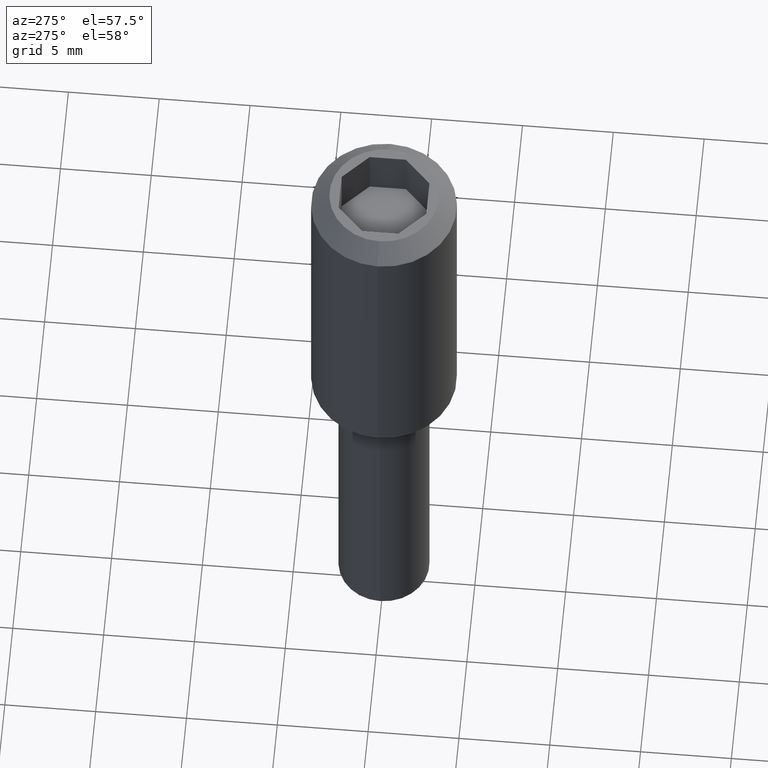
[diagram: clean part render]
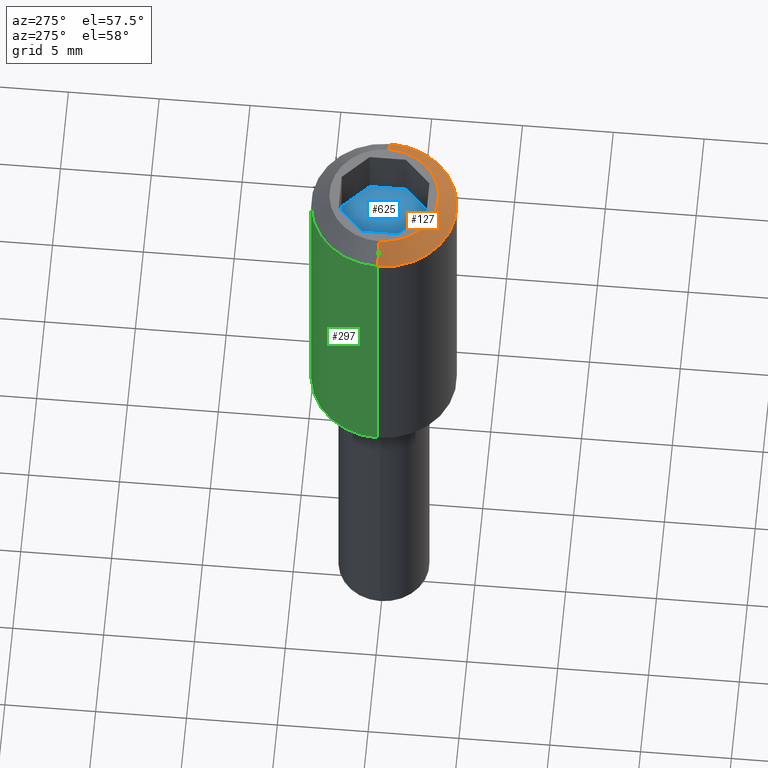
[diagram: same view with three faces highlighted in distinct colors, each labeled with its STEP entity id]
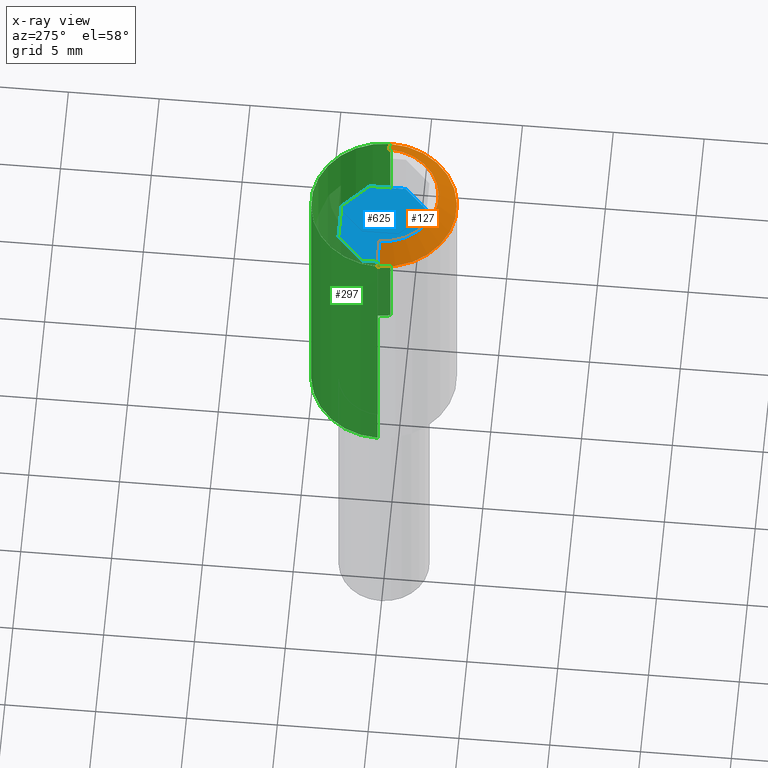
[diagram: x-ray of the same camera — body ghosted, the three highlighted faces saturated]
A machine part, auxiliary view with three faces highlighted in distinct colors.
The next image is the same camera in x-ray (body ghosted, the three faces saturated) — at least one of them is partly hidden behind the body in this view.
Their STEP definitions:

[orange] entity #127 — the highlighted face is a freeform B-spline surface patch.
#65=CARTESIAN_POINT('',(0.0,2.632991E-015,21.500000000000014));
#66=CARTESIAN_POINT('',(0.0,2.632991E-015,21.500000000000014));
#67=CARTESIAN_POINT('',(0.0,2.632991E-015,21.500000000000014));
#68=CARTESIAN_POINT('',(0.0,2.632991E-015,21.500000000000014));
#69=CARTESIAN_POINT('',(0.0,2.632991E-015,21.500000000000014));
#70=CARTESIAN_POINT('',(0.0,2.632991E-015,21.500000000000014));
#71=CARTESIAN_POINT('',(0.0,2.632991E-015,21.500000000000014));
#72=CARTESIAN_POINT('',(0.0,2.632991E-015,21.500000000000014));
#73=CARTESIAN_POINT('',(0.0,2.632991E-015,21.500000000000014));
#74=CARTESIAN_POINT('',(0.0,4.200000000000019,17.299999999999983));
#75=CARTESIAN_POINT('',(4.200000000000017,4.200000000000019,17.299999999999983));
#76=CARTESIAN_POINT('',(4.200000000000017,2.118639E-015,17.299999999999983));
#77=CARTESIAN_POINT('',(4.200000000000017,-4.200000000000015,17.299999999999983));
#78=CARTESIAN_POINT('',(0.0,-4.200000000000015,17.299999999999983));
#79=CARTESIAN_POINT('',(-4.200000000000024,-4.200000000000015,17.299999999999983));
#80=CARTESIAN_POINT('',(-4.200000000000017,2.118639E-015,17.299999999999983));
#81=CARTESIAN_POINT('',(-4.200000000000024,4.200000000000019,17.299999999999983));
#82=CARTESIAN_POINT('',(0.0,4.200000000000019,17.299999999999983));
#90=(BOUNDED_SURFACE()B_SPLINE_SURFACE(2,1,((#65,#74),(#66,#75),(#67,#76),(#68,#77),(#69,#78),(#70,#79),(#71,#80),(#72,#81),(#73,#82)),.UNSPECIFIED.,.T.,.F.,.U.)B_SPLINE_SURFACE_WITH_KNOTS((3,2,2,2,3),(2,2),(0.0,0.250000000000000,0.500000000000000,0.750000000000000,1.0),(0.0,1.0),.UNSPECIFIED.)GEOMETRIC_REPRESENTATION_ITEM()RATIONAL_B_SPLINE_SURFACE(((1.0,1.0),(0.707106781186548,0.707106781186548),(1.0,1.0),(0.707106781186548,0.707106781186548),(1.0,1.0),(0.707106781186548,0.707106781186548),(1.0,1.0),(0.707106781186548,0.707106781186548),(1.0,1.0)))REPRESENTATION_ITEM('')SURFACE());
#91=CARTESIAN_POINT('',(-3.000000000000007,2.265597E-015,18.500000000000000));
#92=VERTEX_POINT('',#91);
#93=CARTESIAN_POINT('',(3.0,2.265597E-015,18.500000000000000));
#94=VERTEX_POINT('',#93);
#95=CARTESIAN_POINT('',(0.0,2.265597E-015,18.500000000000000));
#96=DIRECTION('',(0.0,1.224647E-016,1.0));
#97=DIRECTION('',(-1.0,0.0,0.0));
#98=AXIS2_PLACEMENT_3D('',#95,#96,#97);
#99=CIRCLE('',#98,3.000000000000002);
#100=EDGE_CURVE('',#92,#94,#99,.T.);
#101=ORIENTED_EDGE('',*,*,#100,.F.);
#102=CARTESIAN_POINT('',(-4.000000000000007,2.143132E-015,17.500000000000000));
#103=VERTEX_POINT('',#102);
#104=CARTESIAN_POINT('',(-3.000000000000007,2.265597E-015,18.500000000000000));
#105=DIRECTION('',(-0.707106781186546,-8.659561E-017,-0.707106781186549));
#106=VECTOR('',#105,1.414213562373098);
#107=LINE('',#104,#106);
#108=EDGE_CURVE('',#92,#103,#107,.T.);
#109=ORIENTED_EDGE('',*,*,#108,.T.);
#110=CARTESIAN_POINT('',(4.000000000000028,2.143132E-015,17.500000000000000));
#111=VERTEX_POINT('',#110);
#112=CARTESIAN_POINT('',(0.0,2.143132E-015,17.500000000000000));
#113=DIRECTION('',(0.0,-1.224647E-016,-1.0));
#114=DIRECTION('',(-1.0,0.0,0.0));
#115=AXIS2_PLACEMENT_3D('',#112,#113,#114);
#116=CIRCLE('',#115,4.000000000000004);
#117=EDGE_CURVE('',#111,#103,#116,.T.);
#118=ORIENTED_EDGE('',*,*,#117,.F.);
#119=CARTESIAN_POINT('',(3.0,2.265597E-015,18.500000000000000));
#120=DIRECTION('',(0.707106781186546,-8.659561E-017,-0.707106781186549));
#121=VECTOR('',#120,1.414213562373118);
#122=LINE('',#119,#121);
#123=EDGE_CURVE('',#94,#111,#122,.T.);
#124=ORIENTED_EDGE('',*,*,#123,.F.);
#125=EDGE_LOOP('',(#101,#109,#118,#124));
#126=FACE_OUTER_BOUND('',#125,.T.);
#127=ADVANCED_FACE('',(#126),#90,.T.);

[blue] entity #625 — the highlighted planar face has unit normal (0, 0, 1).
#424=CARTESIAN_POINT('',(1.0,-2.414213562373094,15.500000000000000));
#425=VERTEX_POINT('',#424);
#432=CARTESIAN_POINT('',(-1.0,-2.414213562373094,15.500000000000000));
#433=VERTEX_POINT('',#432);
#434=CARTESIAN_POINT('',(1.0,-2.414213562373094,15.500000000000000));
#435=DIRECTION('',(-1.0,0.0,0.0));
#436=VECTOR('',#435,2.0);
#437=LINE('',#434,#436);
#438=EDGE_CURVE('',#425,#433,#437,.T.);
#456=CARTESIAN_POINT('',(-2.414213562373107,-0.999999999999998,15.500000000000000));
#457=VERTEX_POINT('',#456);
#458=CARTESIAN_POINT('',(-1.0,-2.414213562373094,15.500000000000000));
#459=DIRECTION('',(-0.707106781186547,0.707106781186548,0.0));
#460=VECTOR('',#459,2.000000000000008);
#461=LINE('',#458,#460);
#462=EDGE_CURVE('',#433,#457,#461,.T.);
#480=CARTESIAN_POINT('',(-2.414213562373107,1.000000000000002,15.500000000000000));
#481=VERTEX_POINT('',#480);
#482=CARTESIAN_POINT('',(-2.414213562373107,-0.999999999999998,15.500000000000000));
#483=DIRECTION('',(0.0,1.0,0.0));
#484=VECTOR('',#483,2.0);
#485=LINE('',#482,#484);
#486=EDGE_CURVE('',#457,#481,#485,.T.);
#504=CARTESIAN_POINT('',(-1.0,2.414213562373098,15.500000000000000));
#505=VERTEX_POINT('',#504);
#506=CARTESIAN_POINT('',(-2.414213562373099,0.999999999999995,15.500000000000000));
#507=DIRECTION('',(0.707106781186548,0.707106781186548,0.0));
#508=VECTOR('',#507,2.000000000000006);
#509=LINE('',#506,#508);
#510=EDGE_CURVE('',#481,#505,#509,.T.);
#528=CARTESIAN_POINT('',(1.0,2.414213562373098,15.500000000000000));
#529=VERTEX_POINT('',#528);
#530=CARTESIAN_POINT('',(-1.0,2.414213562373098,15.500000000000000));
#531=DIRECTION('',(1.0,0.0,0.0));
#532=VECTOR('',#531,2.0);
#533=LINE('',#530,#532);
#534=EDGE_CURVE('',#505,#529,#533,.T.);
#552=CARTESIAN_POINT('',(2.414213562373107,1.000000000000002,15.500000000000000));
#553=VERTEX_POINT('',#552);
#554=CARTESIAN_POINT('',(1.000000000000007,2.414213562373101,15.500000000000000));
#555=DIRECTION('',(0.707106781186548,-0.707106781186548,0.0));
#556=VECTOR('',#555,2.000000000000006);
#557=LINE('',#554,#556);
#558=EDGE_CURVE('',#529,#553,#557,.T.);
#576=CARTESIAN_POINT('',(2.414213562373107,-0.999999999999998,15.500000000000000));
#577=VERTEX_POINT('',#576);
#578=CARTESIAN_POINT('',(2.414213562373107,1.000000000000002,15.500000000000000));
#579=DIRECTION('',(0.0,-1.0,0.0));
#580=VECTOR('',#579,2.0);
#581=LINE('',#578,#580);
#582=EDGE_CURVE('',#553,#577,#581,.T.);
#600=CARTESIAN_POINT('',(2.414213562373099,-0.999999999999991,15.500000000000000));
#601=DIRECTION('',(-0.707106781186547,-0.707106781186548,0.0));
#602=VECTOR('',#601,2.000000000000008);
#603=LINE('',#600,#602);
#604=EDGE_CURVE('',#577,#425,#603,.T.);
#610=CARTESIAN_POINT('',(2.655634918610417,2.655634918610412,15.500000000000000));
#611=DIRECTION('',(0.0,0.0,1.0));
#612=DIRECTION('',(-1.0,0.0,0.0));
#613=AXIS2_PLACEMENT_3D('',#610,#611,#612);
#614=PLANE('',#613);
#615=ORIENTED_EDGE('',*,*,#438,.F.);
#616=ORIENTED_EDGE('',*,*,#604,.F.);
#617=ORIENTED_EDGE('',*,*,#582,.F.);
#618=ORIENTED_EDGE('',*,*,#558,.F.);
#619=ORIENTED_EDGE('',*,*,#534,.F.);
#620=ORIENTED_EDGE('',*,*,#510,.F.);
#621=ORIENTED_EDGE('',*,*,#486,.F.);
#622=ORIENTED_EDGE('',*,*,#462,.F.);
#623=EDGE_LOOP('',(#615,#616,#617,#618,#619,#620,#621,#622));
#624=FACE_OUTER_BOUND('',#623,.T.);
#625=ADVANCED_FACE('',(#624),#614,.T.);

[green] entity #297 — the highlighted cylindrical surface (partial cylindrical patch) has radius 4 mm, axis along (0, 0, 1).
#102=CARTESIAN_POINT('',(-4.000000000000007,2.143132E-015,17.500000000000000));
#103=VERTEX_POINT('',#102);
#110=CARTESIAN_POINT('',(4.000000000000028,2.143132E-015,17.500000000000000));
#111=VERTEX_POINT('',#110);
#165=CARTESIAN_POINT('',(-4.000000000000007,0.0,0.0));
#166=VERTEX_POINT('',#165);
#167=CARTESIAN_POINT('',(4.000000000000028,0.0,0.0));
#168=VERTEX_POINT('',#167);
#176=CARTESIAN_POINT('',(4.000000000000028,0.0,0.0));
#177=DIRECTION('',(0.0,0.0,1.0));
#178=VECTOR('',#177,17.500000000000000);
#179=LINE('',#176,#178);
#180=EDGE_CURVE('',#168,#111,#179,.T.);
#183=CARTESIAN_POINT('',(-4.000000000000007,0.0,0.0));
#184=DIRECTION('',(0.0,0.0,1.0));
#185=VECTOR('',#184,17.500000000000000);
#186=LINE('',#183,#185);
#187=EDGE_CURVE('',#166,#103,#186,.T.);
#274=CARTESIAN_POINT('',(0.0,-1.224647E-024,-1.000000E-008));
#275=DIRECTION('',(0.0,1.224647E-016,1.0));
#276=DIRECTION('',(0.0,-1.0,1.224647E-016));
#277=AXIS2_PLACEMENT_3D('',#274,#275,#276);
#278=CYLINDRICAL_SURFACE('',#277,4.000000000000004);
#279=ORIENTED_EDGE('',*,*,#180,.F.);
#280=CARTESIAN_POINT('',(0.0,0.0,0.0));
#281=DIRECTION('',(0.0,1.224647E-016,1.0));
#282=DIRECTION('',(1.0,0.0,0.0));
#283=AXIS2_PLACEMENT_3D('',#280,#281,#282);
#284=CIRCLE('',#283,4.000000000000004);
#285=EDGE_CURVE('',#168,#166,#284,.T.);
#286=ORIENTED_EDGE('',*,*,#285,.T.);
#287=ORIENTED_EDGE('',*,*,#187,.T.);
#288=CARTESIAN_POINT('',(0.0,2.143132E-015,17.500000000000000));
#289=DIRECTION('',(0.0,-1.224647E-016,-1.0));
#290=DIRECTION('',(-1.0,0.0,0.0));
#291=AXIS2_PLACEMENT_3D('',#288,#289,#290);
#292=CIRCLE('',#291,4.000000000000004);
#293=EDGE_CURVE('',#103,#111,#292,.T.);
#294=ORIENTED_EDGE('',*,*,#293,.T.);
#295=EDGE_LOOP('',(#279,#286,#287,#294));
#296=FACE_OUTER_BOUND('',#295,.T.);
#297=ADVANCED_FACE('',(#296),#278,.T.);